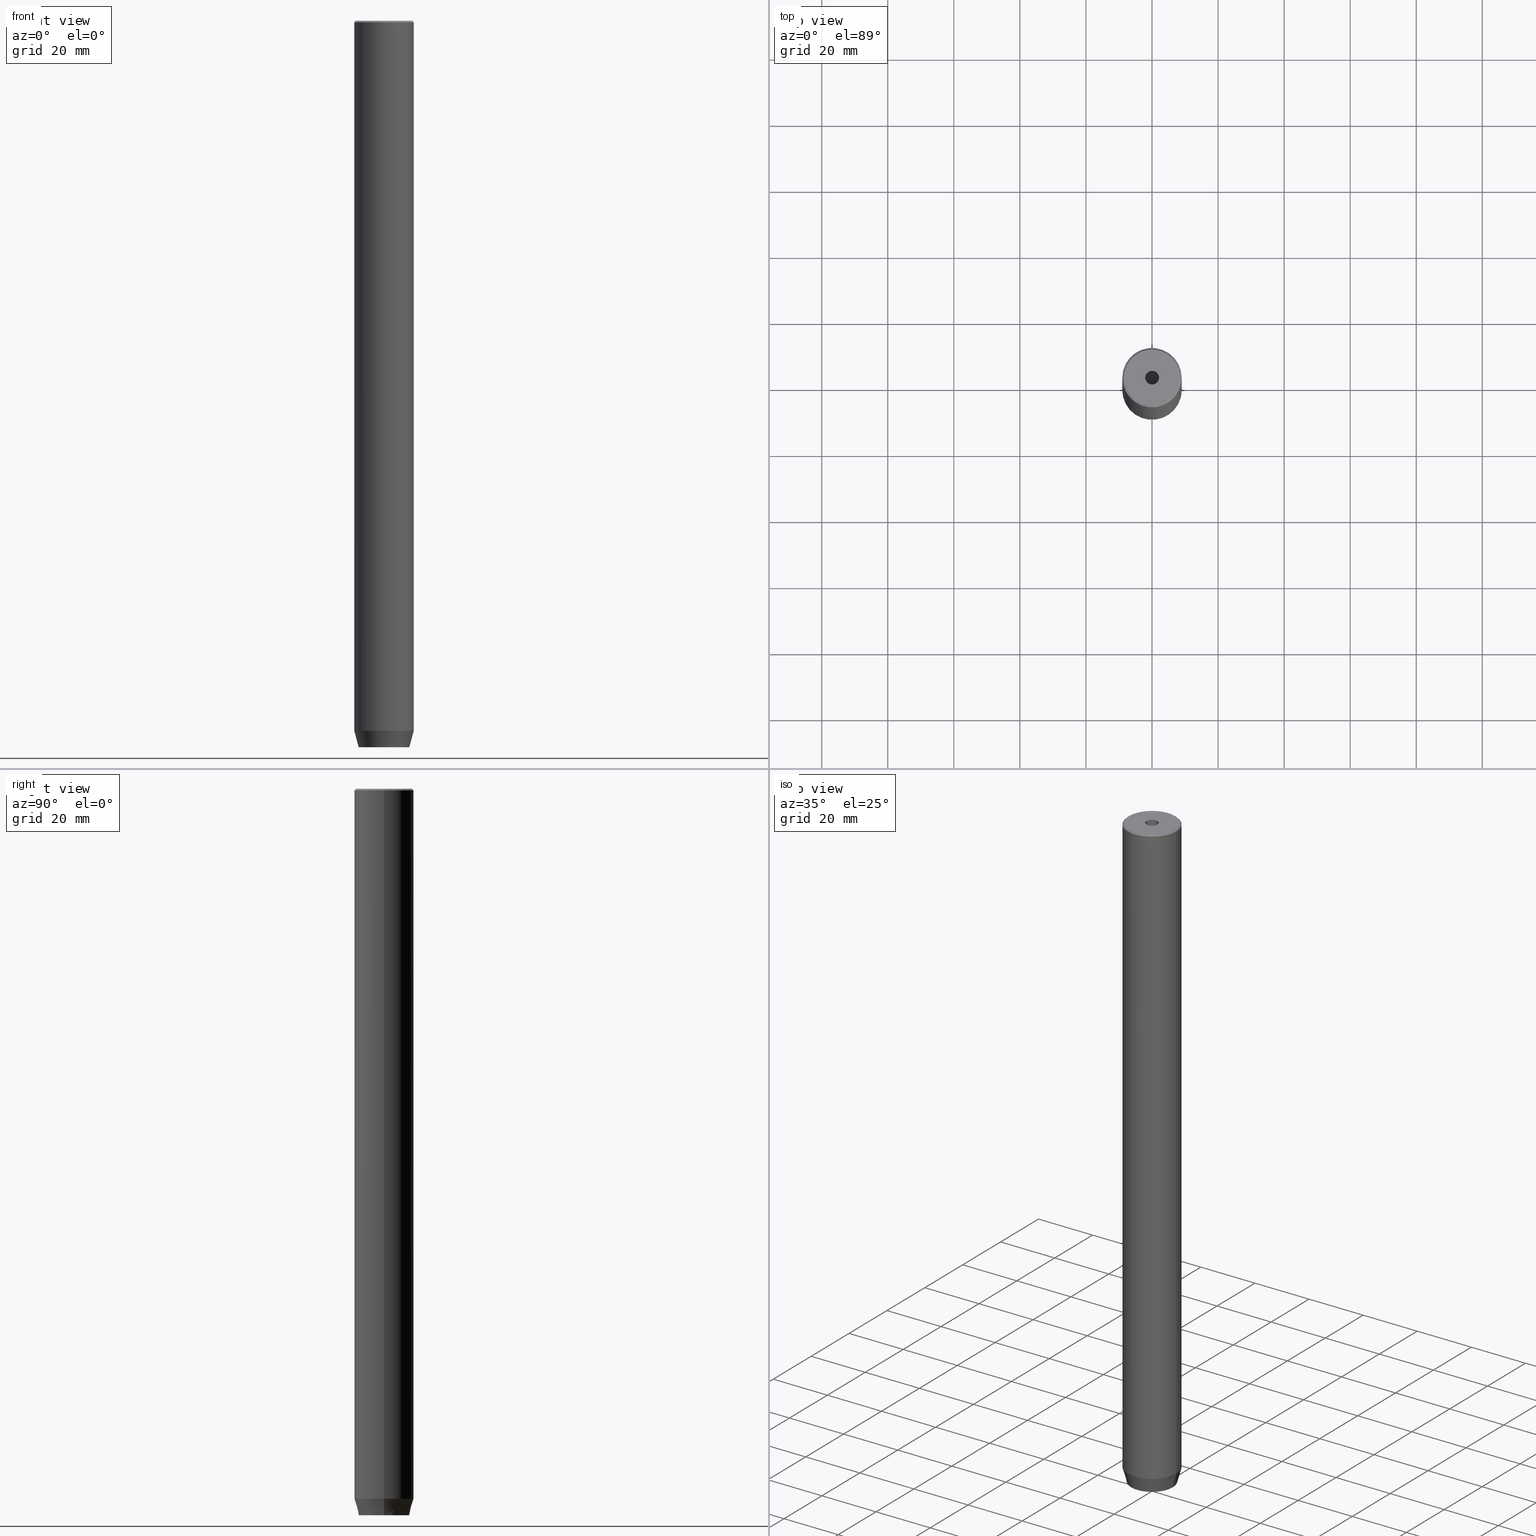
[diagram: canonical four-view strip — front | top / right | iso, engineering-drawing reading convention]
A machine part, canonical four-view strip (front | top / right | iso — engineering-drawing reading convention). The complete STEP part file that produces these views, byte-faithful:
ISO-10303-21;
HEADER;
FILE_DESCRIPTION (( 'STEP AP203' ),
    '1' );
FILE_NAME ('5825.STEP',
    '2024-01-02T19:06:49',
    ( '' ),
    ( '' ),
    'SwSTEP 2.0',
    'SolidWorks 2019',
    '' );
FILE_SCHEMA (( 'CONFIG_CONTROL_DESIGN' ));
ENDSEC;

DATA;
#1 = EDGE_LOOP ( 'NONE', ( #4, #383, #238, #505 ) ) ;
#2 = CARTESIAN_POINT ( 'NONE',  ( 3.000000000000000000, 0.000000000000000000, -217.2000000000000171 ) ) ;
#3 = ORIENTED_EDGE ( 'NONE', *, *, #77, .F. ) ;
#4 = ORIENTED_EDGE ( 'NONE', *, *, #68, .T. ) ;
#5 = VECTOR ( 'NONE', #581, 1000.000000000000000 ) ;
#6 = VECTOR ( 'NONE', #288, 1000.000000000000000 ) ;
#7 = PERSON_AND_ORGANIZATION ( #260, #237 ) ;
#8 = ORIENTED_EDGE ( 'NONE', *, *, #438, .F. ) ;
#9 = ORIENTED_EDGE ( 'NONE', *, *, #449, .F. ) ;
#10 = CARTESIAN_POINT ( 'NONE',  ( -2.168404344971008868E-16, -3.464101615137754830, -217.2000000000000171 ) ) ;
#11 = DIRECTION ( 'NONE',  ( 0.8660254037844385966, -0.5000000000000001110, 0.000000000000000000 ) ) ;
#12 = PLANE ( 'NONE',  #281 ) ;
#13 = APPLICATION_PROTOCOL_DEFINITION ( 'international standard', 'config_control_design', 1994, #381 ) ;
#14 = DIRECTION ( 'NONE',  ( 0.7071067811865647812, 8.659560562355143632E-17, -0.7071067811865302533 ) ) ;
#15 = EDGE_CURVE ( 'NONE', #543, #250, #76, .T. ) ;
#16 = DATE_AND_TIME ( #450, #371 ) ;
#17 = VERTEX_POINT ( 'NONE', #93 ) ;
#18 = AXIS2_PLACEMENT_3D ( 'NONE', #39, #533, #385 ) ;
#19 = CALENDAR_DATE ( 2024, 2, 1 ) ;
#20 = VERTEX_POINT ( 'NONE', #487 ) ;
#21 = EDGE_CURVE ( 'NONE', #423, #154, #539, .T. ) ;
#22 = FACE_OUTER_BOUND ( 'NONE', #119, .T. ) ;
#23 = CARTESIAN_POINT ( 'NONE',  ( -1.500000000000000666, -2.598076211353316456, -217.2000000000000171 ) ) ;
#24 = AXIS2_PLACEMENT_3D ( 'NONE', #251, #424, #380 ) ;
#25 = DIRECTION ( 'NONE',  ( -0.8660254037844385966, -0.5000000000000001110, 0.000000000000000000 ) ) ;
#26 = PLANE ( 'NONE',  #263 ) ;
#27 = EDGE_LOOP ( 'NONE', ( #470, #130, #3, #160, #63, #410 ) ) ;
#28 = LINE ( 'NONE', #511, #399 ) ;
#29 = FACE_BOUND ( 'NONE', #27, .T. ) ;
#30 = DIRECTION ( 'NONE',  ( -2.503857664561932376E-16, 1.000000000000000000, 0.000000000000000000 ) ) ;
#31 = ORIENTED_EDGE ( 'NONE', *, *, #583, .F. ) ;
#32 = EDGE_CURVE ( 'NONE', #49, #452, #492, .T. ) ;
#33 = AXIS2_PLACEMENT_3D ( 'NONE', #96, #266, #584 ) ;
#34 = CC_DESIGN_APPROVAL ( #282, ( #74 ) ) ;
#35 = VECTOR ( 'NONE', #85, 999.9999999999998863 ) ;
#36 = PRODUCT_RELATED_PRODUCT_CATEGORY ( 'detail', '', ( #538 ) ) ;
#37 = EDGE_CURVE ( 'NONE', #367, #423, #228, .T. ) ;
#38 = CARTESIAN_POINT ( 'NONE',  ( -9.000000000000000000, 1.102182119232617714E-15, -214.9999999999999716 ) ) ;
#39 = CARTESIAN_POINT ( 'NONE',  ( 0.000000000000000000, 0.000000000000000000, -214.9999999999999716 ) ) ;
#40 = DIRECTION ( 'NONE',  ( -0.000000000000000000, -0.000000000000000000, 1.000000000000000000 ) ) ;
#41 = VECTOR ( 'NONE', #265, 1000.000000000000000 ) ;
#42 = DIRECTION ( 'NONE',  ( -0.000000000000000000, -0.000000000000000000, 1.000000000000000000 ) ) ;
#43 = ORIENTED_EDGE ( 'NONE', *, *, #428, .F. ) ;
#44 = CARTESIAN_POINT ( 'NONE',  ( 0.000000000000000000, 0.000000000000000000, -220.0000000000000000 ) ) ;
#45 = AXIS2_PLACEMENT_3D ( 'NONE', #389, #42, #217 ) ;
#46 = ORIENTED_EDGE ( 'NONE', *, *, #438, .T. ) ;
#47 = CARTESIAN_POINT ( 'NONE',  ( 0.000000000000000000, 0.000000000000000000, 0.000000000000000000 ) ) ;
#48 = CARTESIAN_POINT ( 'NONE',  ( -1.499999999999999556, 2.598076211353316012, -217.2000000000000171 ) ) ;
#49 = VERTEX_POINT ( 'NONE', #182 ) ;
#50 = EDGE_LOOP ( 'NONE', ( #255, #46, #356, #206 ) ) ;
#51 = CYLINDRICAL_SURFACE ( 'NONE', #432, 2.099999999999997424 ) ;
#52 = CARTESIAN_POINT ( 'NONE',  ( 0.000000000000000000, 0.000000000000000000, 0.000000000000000000 ) ) ;
#53 = AXIS2_PLACEMENT_3D ( 'NONE', #201, #566, #463 ) ;
#54 = VERTEX_POINT ( 'NONE', #103 ) ;
#55 = ORIENTED_EDGE ( 'NONE', *, *, #77, .T. ) ;
#56 = CONICAL_SURFACE ( 'NONE', #53, 2.099999999999996092, 1.029744258676652091 ) ;
#57 = DIRECTION ( 'NONE',  ( -0.000000000000000000, -0.000000000000000000, 1.000000000000000000 ) ) ;
#58 = DATE_TIME_ROLE ( 'classification_date' ) ;
#59 = DIRECTION ( 'NONE',  ( 1.000000000000000000, 0.000000000000000000, 0.000000000000000000 ) ) ;
#60 = DIRECTION ( 'NONE',  ( 0.8660254037844385966, -0.5000000000000001110, 0.000000000000000000 ) ) ;
#61 = CARTESIAN_POINT ( 'NONE',  ( 3.000000000000000000, 0.000000000000000000, -220.0000000000000000 ) ) ;
#62 = DIRECTION ( 'NONE',  ( -0.000000000000000000, -0.000000000000000000, 1.000000000000000000 ) ) ;
#63 = ORIENTED_EDGE ( 'NONE', *, *, #169, .F. ) ;
#64 = EDGE_CURVE ( 'NONE', #106, #224, #497, .T. ) ;
#65 = VERTEX_POINT ( 'NONE', #546 ) ;
#66 = APPROVAL_ROLE ( '' ) ;
#67 = ORIENTED_EDGE ( 'NONE', *, *, #375, .T. ) ;
#68 = EDGE_CURVE ( 'NONE', #498, #49, #81, .T. ) ;
#69 = CARTESIAN_POINT ( 'NONE',  ( -1.084202172485504434E-16, 3.464101615137754830, -217.2000000000000171 ) ) ;
#70 = VECTOR ( 'NONE', #25, 1000.000000000000000 ) ;
#71 = PERSON_AND_ORGANIZATION ( #260, #237 ) ;
#72 = ORIENTED_EDGE ( 'NONE', *, *, #358, .T. ) ;
#73 = ORIENTED_EDGE ( 'NONE', *, *, #21, .F. ) ;
#74 = SECURITY_CLASSIFICATION ( '', '', #102 ) ;
#76 = CIRCLE ( 'NONE', #563, 7.660254037844374864 ) ;
#75 = CARTESIAN_POINT ( 'NONE',  ( -1.084202172485504434E-16, 3.464101615137754830, -217.2000000000000171 ) ) ;
#77 = EDGE_CURVE ( 'NONE', #335, #294, #28, .T. ) ;
#78 = CARTESIAN_POINT ( 'NONE',  ( -2.099999999999997424, 2.571758278209438506E-16, 0.000000000000000000 ) ) ;
#79 = PLANE ( 'NONE',  #24 ) ;
#80 = EDGE_CURVE ( 'NONE', #423, #224, #120, .T. ) ;
#81 = CIRCLE ( 'NONE', #377, 9.000000000000000000 ) ;
#82 = DIRECTION ( 'NONE',  ( -0.000000000000000000, -0.000000000000000000, 1.000000000000000000 ) ) ;
#83 = DIRECTION ( 'NONE',  ( 0.000000000000000000, 0.000000000000000000, -1.000000000000000000 ) ) ;
#84 = DIRECTION ( 'NONE',  ( -0.000000000000000000, -0.000000000000000000, -1.000000000000000000 ) ) ;
#85 = DIRECTION ( 'NONE',  ( 0.8660254037844387076, 0.4999999999999999445, 0.000000000000000000 ) ) ;
#86 = EDGE_CURVE ( 'NONE', #49, #498, #127, .T. ) ;
#87 = DIRECTION ( 'NONE',  ( -1.000000000000000000, 0.000000000000000000, -0.000000000000000000 ) ) ;
#88 = ADVANCED_FACE ( 'NONE', ( #231 ), #407, .T. ) ;
#89 = PLANE ( 'NONE',  #33 ) ;
#90 =( GEOMETRIC_REPRESENTATION_CONTEXT ( 3 ) GLOBAL_UNCERTAINTY_ASSIGNED_CONTEXT ( ( #327 ) ) GLOBAL_UNIT_ASSIGNED_CONTEXT ( ( #129, #299, #175 ) ) REPRESENTATION_CONTEXT ( 'NONE', 'WORKASPACE' ) );
#91 = EDGE_LOOP ( 'NONE', ( #219, #9, #31, #403 ) ) ;
#92 = PRODUCT_DEFINITION_FORMATION_WITH_SPECIFIED_SOURCE ( 'LIBOVOLN�', '', #538, .NOT_KNOWN. ) ;
#93 = CARTESIAN_POINT ( 'NONE',  ( 3.000000000000000000, -1.732050807568876527, -220.0000000000000000 ) ) ;
#94 = CARTESIAN_POINT ( 'NONE',  ( -3.000000000000000000, -1.732050807568877859, -217.2000000000000171 ) ) ;
#95 = VECTOR ( 'NONE', #489, 1000.000000000000000 ) ;
#96 = CARTESIAN_POINT ( 'NONE',  ( -1.499999999999999556, 2.598076211353316012, -217.2000000000000171 ) ) ;
#97 = DIRECTION ( 'NONE',  ( 0.000000000000000000, 0.000000000000000000, -1.000000000000000000 ) ) ;
#98 = ORIENTED_EDGE ( 'NONE', *, *, #264, .F. ) ;
#99 = CARTESIAN_POINT ( 'NONE',  ( -7.660254037844374864, 1.020146339021393877E-15, -220.0000000000000000 ) ) ;
#100 = CARTESIAN_POINT ( 'NONE',  ( 3.000000000000000000, -1.732050807568876527, -217.2000000000000171 ) ) ;
#101 = EDGE_CURVE ( 'NONE', #501, #504, #515, .T. ) ;
#102 = SECURITY_CLASSIFICATION_LEVEL ( 'unclassified' ) ;
#103 = CARTESIAN_POINT ( 'NONE',  ( -3.000000000000000888, 1.732050807568876527, -217.2000000000000171 ) ) ;
#104 = DIRECTION ( 'NONE',  ( 0.8660254037844385966, 0.5000000000000001110, 0.000000000000000000 ) ) ;
#105 = CARTESIAN_POINT ( 'NONE',  ( 0.000000000000000000, 0.000000000000000000, 0.000000000000000000 ) ) ;
#106 = VERTEX_POINT ( 'NONE', #198 ) ;
#107 = EDGE_CURVE ( 'NONE', #294, #587, #418, .T. ) ;
#108 = ORIENTED_EDGE ( 'NONE', *, *, #264, .T. ) ;
#109 = ORIENTED_EDGE ( 'NONE', *, *, #37, .T. ) ;
#110 = CALENDAR_DATE ( 2024, 2, 1 ) ;
#111 = CARTESIAN_POINT ( 'NONE',  ( 0.000000000000000000, 0.000000000000000000, -1.990051048614449116E-16 ) ) ;
#112 = AXIS2_PLACEMENT_3D ( 'NONE', #433, #214, #170 ) ;
#113 = CONICAL_SURFACE ( 'NONE', #401, 8.499999999999980460, 0.7853981633974725929 ) ;
#114 = PERSON_AND_ORGANIZATION ( #260, #237 ) ;
#115 = CARTESIAN_POINT ( 'NONE',  ( 0.000000000000000000, 0.000000000000000000, -217.2000000000000171 ) ) ;
#116 = EDGE_CURVE ( 'NONE', #154, #501, #205, .T. ) ;
#117 = LINE ( 'NONE', #332, #149 ) ;
#118 = CARTESIAN_POINT ( 'NONE',  ( -2.168404344971008868E-16, -3.464101615137754830, -220.0000000000000000 ) ) ;
#119 = EDGE_LOOP ( 'NONE', ( #472, #572, #73, #373 ) ) ;
#120 = LINE ( 'NONE', #419, #372 ) ;
#121 = AXIS2_PLACEMENT_3D ( 'NONE', #256, #388, #162 ) ;
#122 = AXIS2_PLACEMENT_3D ( 'NONE', #115, #552, #451 ) ;
#123 = EDGE_CURVE ( 'NONE', #367, #106, #207, .T. ) ;
#124 = EDGE_CURVE ( 'NONE', #20, #452, #117, .T. ) ;
#125 = CARTESIAN_POINT ( 'NONE',  ( 3.000000000000000000, 1.732050807568876527, -217.2000000000000171 ) ) ;
#126 = FACE_OUTER_BOUND ( 'NONE', #304, .T. ) ;
#127 = CIRCLE ( 'NONE', #455, 9.000000000000000000 ) ;
#128 = VECTOR ( 'NONE', #142, 999.9999999999998863 ) ;
#129 =( LENGTH_UNIT ( ) NAMED_UNIT ( * ) SI_UNIT ( .MILLI., .METRE. ) );
#130 = ORIENTED_EDGE ( 'NONE', *, *, #107, .F. ) ;
#131 = DIRECTION ( 'NONE',  ( 1.000000000000000000, 0.000000000000000000, 0.000000000000000000 ) ) ;
#132 = CARTESIAN_POINT ( 'NONE',  ( 0.000000000000000000, 0.000000000000000000, 0.000000000000000000 ) ) ;
#133 = FACE_OUTER_BOUND ( 'NONE', #527, .T. ) ;
#134 = CARTESIAN_POINT ( 'NONE',  ( -9.000000000000000000, 1.102182119232617714E-15, -0.4999999999999952260 ) ) ;
#135 = CIRCLE ( 'NONE', #471, 2.099999999999996092 ) ;
#136 = CLOSED_SHELL ( 'NONE', ( #364, #242, #326, #239, #247, #391, #196, #88, #197, #241, #519, #187, #576, #141, #244, #408, #291, #420, #188 ) ) ;
#137 = ORIENTED_EDGE ( 'NONE', *, *, #430, .F. ) ;
#138 = AXIS2_PLACEMENT_3D ( 'NONE', #532, #97, #477 ) ;
#139 = CARTESIAN_POINT ( 'NONE',  ( 0.000000000000000000, 0.000000000000000000, 0.000000000000000000 ) ) ;
#140 = CC_DESIGN_PERSON_AND_ORGANIZATION_ASSIGNMENT ( #7, #509, ( #336 ) ) ;
#141 = ADVANCED_FACE ( 'NONE', ( #159 ), #518, .F. ) ;
#142 = DIRECTION ( 'NONE',  ( 0.8660254037844387076, 0.4999999999999999445, 0.000000000000000000 ) ) ;
#143 = DIRECTION ( 'NONE',  ( -0.000000000000000000, 0.000000000000000000, -1.000000000000000000 ) ) ;
#144 = DIRECTION ( 'NONE',  ( 2.503857664561933362E-16, -1.000000000000000000, 0.000000000000000000 ) ) ;
#145 = ORIENTED_EDGE ( 'NONE', *, *, #86, .T. ) ;
#146 = SHAPE_DEFINITION_REPRESENTATION ( #337, #503 ) ;
#147 = CC_DESIGN_APPROVAL ( #411, ( #92 ) ) ;
#148 = ORIENTED_EDGE ( 'NONE', *, *, #116, .F. ) ;
#149 = VECTOR ( 'NONE', #376, 1000.000000000000114 ) ;
#150 = APPROVAL_DATE_TIME ( #548, #282 ) ;
#151 = APPROVAL_ROLE ( '' ) ;
#152 = CARTESIAN_POINT ( 'NONE',  ( 2.099999999999996092, 0.000000000000000000, -20.00000000000000000 ) ) ;
#153 = PLANE ( 'NONE',  #293 ) ;
#154 = VERTEX_POINT ( 'NONE', #173 ) ;
#155 = DIRECTION ( 'NONE',  ( 1.000000000000000000, 0.000000000000000000, -0.000000000000000000 ) ) ;
#156 = ORIENTED_EDGE ( 'NONE', *, *, #123, .T. ) ;
#157 = AXIS2_PLACEMENT_3D ( 'NONE', #105, #283, #360 ) ;
#159 = FACE_OUTER_BOUND ( 'NONE', #520, .T. ) ;
#158 = AXIS2_PLACEMENT_3D ( 'NONE', #111, #246, #569 ) ;
#160 = ORIENTED_EDGE ( 'NONE', *, *, #568, .F. ) ;
#161 = ORIENTED_EDGE ( 'NONE', *, *, #551, .T. ) ;
#162 = DIRECTION ( 'NONE',  ( 1.000000000000000000, 0.000000000000000000, 0.000000000000000000 ) ) ;
#163 = DIRECTION ( 'NONE',  ( -0.000000000000000000, -0.000000000000000000, 1.000000000000000000 ) ) ;
#164 = DIRECTION ( 'NONE',  ( 0.8571673007021111124, 0.000000000000000000, 0.5150380749100562650 ) ) ;
#165 = DIRECTION ( 'NONE',  ( 1.000000000000000000, 0.000000000000000000, 0.000000000000000000 ) ) ;
#166 = VECTOR ( 'NONE', #374, 1000.000000000000114 ) ;
#167 = FACE_OUTER_BOUND ( 'NONE', #559, .T. ) ;
#168 = EDGE_LOOP ( 'NONE', ( #390, #307, #269 ) ) ;
#169 = EDGE_CURVE ( 'NONE', #224, #17, #434, .T. ) ;
#170 = DIRECTION ( 'NONE',  ( 0.8660254037844385966, -0.5000000000000001110, 0.000000000000000000 ) ) ;
#171 = CARTESIAN_POINT ( 'NONE',  ( -3.000000000000000888, 1.732050807568876527, -217.2000000000000171 ) ) ;
#172 = ORIENTED_EDGE ( 'NONE', *, *, #80, .F. ) ;
#173 = CARTESIAN_POINT ( 'NONE',  ( 3.000000000000000000, -1.732050807568876527, -217.2000000000000171 ) ) ;
#174 = VERTEX_POINT ( 'NONE', #582 ) ;
#175 =( NAMED_UNIT ( * ) SI_UNIT ( $, .STERADIAN. ) SOLID_ANGLE_UNIT ( ) );
#176 = ORIENTED_EDGE ( 'NONE', *, *, #15, .F. ) ;
#177 = DIRECTION ( 'NONE',  ( 0.000000000000000000, -1.000000000000000000, 0.000000000000000000 ) ) ;
#178 = ORIENTED_EDGE ( 'NONE', *, *, #32, .F. ) ;
#179 = VECTOR ( 'NONE', #195, 1000.000000000000000 ) ;
#180 = EDGE_CURVE ( 'NONE', #480, #351, #316, .T. ) ;
#181 = DATE_AND_TIME ( #19, #398 ) ;
#182 = CARTESIAN_POINT ( 'NONE',  ( -9.000000000000000000, 1.102182119232617714E-15, -214.9999999999999716 ) ) ;
#183 = DIRECTION ( 'NONE',  ( -1.000000000000000000, -2.503857664561933362E-16, 0.000000000000000000 ) ) ;
#184 = APPROVAL_STATUS ( 'not_yet_approved' ) ;
#185 = ORIENTED_EDGE ( 'NONE', *, *, #341, .F. ) ;
#186 = ORIENTED_EDGE ( 'NONE', *, *, #123, .F. ) ;
#187 = ADVANCED_FACE ( 'NONE', ( #531 ), #12, .F. ) ;
#188 = ADVANCED_FACE ( 'NONE', ( #133 ), #276, .F. ) ;
#189 = APPLICATION_PROTOCOL_DEFINITION ( 'international standard', 'config_control_design', 1994, #513 ) ;
#190 = LINE ( 'NONE', #94, #95 ) ;
#191 = ORIENTED_EDGE ( 'NONE', *, *, #449, .T. ) ;
#192 = AXIS2_PLACEMENT_3D ( 'NONE', #499, #62, #233 ) ;
#193 = PERSON_AND_ORGANIZATION ( #260, #237 ) ;
#194 = VERTEX_POINT ( 'NONE', #445 ) ;
#195 = DIRECTION ( 'NONE',  ( -0.8571673007021111124, 1.049727191138617217E-16, 0.5150380749100562650 ) ) ;
#196 = ADVANCED_FACE ( 'NONE', ( #232, #447 ), #26, .T. ) ;
#197 = ADVANCED_FACE ( 'NONE', ( #530 ), #510, .T. ) ;
#198 = CARTESIAN_POINT ( 'NONE',  ( -2.168404344971008868E-16, 3.464101615137753942, -220.0000000000000000 ) ) ;
#199 = DIRECTION ( 'NONE',  ( -1.000000000000000000, 0.000000000000000000, 0.000000000000000000 ) ) ;
#200 = CARTESIAN_POINT ( 'NONE',  ( 0.000000000000000000, 0.000000000000000000, 0.000000000000000000 ) ) ;
#201 = CARTESIAN_POINT ( 'NONE',  ( 0.000000000000000000, 0.000000000000000000, -20.00000000000000000 ) ) ;
#202 = EDGE_LOOP ( 'NONE', ( #320, #72, #437, #457 ) ) ;
#203 = EDGE_CURVE ( 'NONE', #54, #367, #526, .T. ) ;
#204 = CONICAL_SURFACE ( 'NONE', #500, 8.499999999999980460, 0.7853981633974725929 ) ;
#205 = LINE ( 'NONE', #330, #70 ) ;
#206 = ORIENTED_EDGE ( 'NONE', *, *, #86, .F. ) ;
#207 = LINE ( 'NONE', #75, #348 ) ;
#208 = DIRECTION ( 'NONE',  ( -0.000000000000000000, -0.000000000000000000, -1.000000000000000000 ) ) ;
#209 = CARTESIAN_POINT ( 'NONE',  ( 9.000000000000000000, 0.000000000000000000, -0.4999999999999952260 ) ) ;
#210 = FACE_OUTER_BOUND ( 'NONE', #202, .T. ) ;
#211 = LOCAL_TIME ( 20, 6, 49.00000000000000000, #443 ) ;
#212 = AXIS2_PLACEMENT_3D ( 'NONE', #139, #163, #491 ) ;
#213 = ORIENTED_EDGE ( 'NONE', *, *, #37, .F. ) ;
#214 = DIRECTION ( 'NONE',  ( -0.5000000000000001110, -0.8660254037844385966, 0.000000000000000000 ) ) ;
#215 = EDGE_CURVE ( 'NONE', #512, #435, #524, .T. ) ;
#216 = LINE ( 'NONE', #38, #346 ) ;
#217 = DIRECTION ( 'NONE',  ( 1.000000000000000000, 0.000000000000000000, 0.000000000000000000 ) ) ;
#218 = CIRCLE ( 'NONE', #138, 9.000000000000000000 ) ;
#219 = ORIENTED_EDGE ( 'NONE', *, *, #107, .T. ) ;
#220 = DIRECTION ( 'NONE',  ( -0.000000000000000000, -0.000000000000000000, 1.000000000000000000 ) ) ;
#221 = ORIENTED_EDGE ( 'NONE', *, *, #101, .F. ) ;
#222 = FACE_OUTER_BOUND ( 'NONE', #301, .T. ) ;
#223 = FACE_OUTER_BOUND ( 'NONE', #1, .T. ) ;
#224 = VERTEX_POINT ( 'NONE', #478 ) ;
#225 = DIRECTION ( 'NONE',  ( 1.000000000000000000, 0.000000000000000000, 0.000000000000000000 ) ) ;
#226 = APPROVAL_STATUS ( 'not_yet_approved' ) ;
#227 = CIRCLE ( 'NONE', #370, 9.000000000000000000 ) ;
#228 = LINE ( 'NONE', #404, #570 ) ;
#229 = VECTOR ( 'NONE', #564, 1000.000000000000000 ) ;
#230 = CALENDAR_DATE ( 2024, 2, 1 ) ;
#231 = FACE_OUTER_BOUND ( 'NONE', #561, .T. ) ;
#232 = FACE_BOUND ( 'NONE', #395, .T. ) ;
#233 = DIRECTION ( 'NONE',  ( 1.000000000000000000, 0.000000000000000000, 0.000000000000000000 ) ) ;
#234 = MECHANICAL_CONTEXT ( 'NONE', #381, 'mechanical' ) ;
#235 = APPROVAL ( #226, 'NEUR�EN�' ) ;
#236 = PERSON_AND_ORGANIZATION ( #260, #237 ) ;
#237 = ORGANIZATION ( 'NEUR�EN�', 'NEUR�EN�', '' ) ;
#238 = ORIENTED_EDGE ( 'NONE', *, *, #585, .T. ) ;
#239 = ADVANCED_FACE ( 'NONE', ( #257 ), #444, .T. ) ;
#240 = FACE_OUTER_BOUND ( 'NONE', #553, .T. ) ;
#241 = ADVANCED_FACE ( 'NONE', ( #580 ), #113, .T. ) ;
#242 = ADVANCED_FACE ( 'NONE', ( #243 ), #56, .F. ) ;
#243 = FACE_OUTER_BOUND ( 'NONE', #535, .T. ) ;
#244 = ADVANCED_FACE ( 'NONE', ( #22 ), #153, .F. ) ;
#245 = VECTOR ( 'NONE', #84, 1000.000000000000000 ) ;
#246 = DIRECTION ( 'NONE',  ( -0.000000000000000000, -0.000000000000000000, 1.000000000000000000 ) ) ;
#247 = ADVANCED_FACE ( 'NONE', ( #223 ), #577, .T. ) ;
#248 = LINE ( 'NONE', #292, #166 ) ;
#249 = ORIENTED_EDGE ( 'NONE', *, *, #468, .F. ) ;
#250 = VERTEX_POINT ( 'NONE', #99 ) ;
#251 = CARTESIAN_POINT ( 'NONE',  ( 1.500000000000000222, 2.598076211353315568, -217.2000000000000171 ) ) ;
#252 = EDGE_CURVE ( 'NONE', #501, #335, #268, .T. ) ;
#253 = CC_DESIGN_PERSON_AND_ORGANIZATION_ASSIGNMENT ( #71, #409, ( #92 ) ) ;
#254 = DIRECTION ( 'NONE',  ( -0.000000000000000000, -0.000000000000000000, 1.000000000000000000 ) ) ;
#255 = ORIENTED_EDGE ( 'NONE', *, *, #534, .F. ) ;
#256 = CARTESIAN_POINT ( 'NONE',  ( 0.000000000000000000, 0.000000000000000000, -1.990051048614449116E-16 ) ) ;
#257 = FACE_OUTER_BOUND ( 'NONE', #560, .T. ) ;
#258 = FACE_OUTER_BOUND ( 'NONE', #396, .T. ) ;
#259 = EDGE_CURVE ( 'NONE', #194, #512, #474, .T. ) ;
#260 = PERSON ( 'NEUR�EN�', 'NEUR�EN�', 'NEUR�EN�', ('NEUR�EN�'), ('NEUR�EN�'), ('NEUR�EN�') ) ;
#261 = VECTOR ( 'NONE', #578, 1000.000000000000000 ) ;
#262 = CARTESIAN_POINT ( 'NONE',  ( 0.000000000000000000, 0.000000000000000000, -0.4999999999999952260 ) ) ;
#263 = AXIS2_PLACEMENT_3D ( 'NONE', #490, #586, #575 ) ;
#264 = EDGE_CURVE ( 'NONE', #20, #480, #275, .T. ) ;
#265 = DIRECTION ( 'NONE',  ( -0.000000000000000000, -0.000000000000000000, 1.000000000000000000 ) ) ;
#266 = DIRECTION ( 'NONE',  ( -0.4999999999999999445, 0.8660254037844387076, 0.000000000000000000 ) ) ;
#267 = CARTESIAN_POINT ( 'NONE',  ( 2.099999999999997424, 0.000000000000000000, 0.000000000000000000 ) ) ;
#268 = LINE ( 'NONE', #10, #378 ) ;
#269 = ORIENTED_EDGE ( 'NONE', *, *, #514, .T. ) ;
#270 = LINE ( 'NONE', #541, #128 ) ;
#271 = PERSON_AND_ORGANIZATION_ROLE ( 'creator' ) ;
#272 = DIRECTION ( 'NONE',  ( -0.000000000000000000, -0.000000000000000000, 1.000000000000000000 ) ) ;
#273 = ORIENTED_EDGE ( 'NONE', *, *, #379, .T. ) ;
#274 = CARTESIAN_POINT ( 'NONE',  ( 1.500000000000000222, 2.598076211353315568, -220.0000000000000000 ) ) ;
#275 = CIRCLE ( 'NONE', #362, 8.499999999999980460 ) ;
#276 = CYLINDRICAL_SURFACE ( 'NONE', #525, 2.099999999999997424 ) ;
#277 = COORDINATED_UNIVERSAL_TIME_OFFSET ( 1, 0, .AHEAD. ) ;
#278 = CC_DESIGN_DATE_AND_TIME_ASSIGNMENT ( #507, #400, ( #336 ) ) ;
#279 = CARTESIAN_POINT ( 'NONE',  ( 0.000000000000000000, 0.000000000000000000, 0.000000000000000000 ) ) ;
#280 = APPROVAL_DATE_TIME ( #16, #235 ) ;
#281 = AXIS2_PLACEMENT_3D ( 'NONE', #303, #183, #144 ) ;
#282 = APPROVAL ( #184, 'NEUR�EN�' ) ;
#283 = DIRECTION ( 'NONE',  ( 0.000000000000000000, 0.000000000000000000, 1.000000000000000000 ) ) ;
#284 = DIRECTION ( 'NONE',  ( 1.000000000000000000, 0.000000000000000000, 0.000000000000000000 ) ) ;
#285 = DIRECTION ( 'NONE',  ( 1.000000000000000000, 0.000000000000000000, 0.000000000000000000 ) ) ;
#286 = CARTESIAN_POINT ( 'NONE',  ( 3.000000000000000000, 0.000000000000000000, -217.2000000000000171 ) ) ;
#287 = AXIS2_PLACEMENT_3D ( 'NONE', #350, #441, #104 ) ;
#288 = DIRECTION ( 'NONE',  ( -0.8660254037844385966, 0.5000000000000001110, 0.000000000000000000 ) ) ;
#289 = ORIENTED_EDGE ( 'NONE', *, *, #514, .F. ) ;
#290 = PLANE ( 'NONE',  #334 ) ;
#291 = ADVANCED_FACE ( 'NONE', ( #240 ), #361, .T. ) ;
#292 = CARTESIAN_POINT ( 'NONE',  ( 9.000000000000000000, 0.000000000000000000, -214.9999999999999716 ) ) ;
#293 = AXIS2_PLACEMENT_3D ( 'NONE', #286, #155, #143 ) ;
#294 = VERTEX_POINT ( 'NONE', #413 ) ;
#295 = EDGE_CURVE ( 'NONE', #174, #194, #556, .T. ) ;
#296 = VECTOR ( 'NONE', #14, 1000.000000000000114 ) ;
#297 = CARTESIAN_POINT ( 'NONE',  ( -2.168404344971008868E-16, -3.464101615137754830, -217.2000000000000171 ) ) ;
#298 = CARTESIAN_POINT ( 'NONE',  ( 0.000000000000000000, 0.000000000000000000, 0.000000000000000000 ) ) ;
#299 =( NAMED_UNIT ( * ) PLANE_ANGLE_UNIT ( ) SI_UNIT ( $, .RADIAN. ) );
#300 = DIRECTION ( 'NONE',  ( -0.000000000000000000, -0.000000000000000000, 1.000000000000000000 ) ) ;
#301 = EDGE_LOOP ( 'NONE', ( #273, #186, #467, #191 ) ) ;
#302 = ORIENTED_EDGE ( 'NONE', *, *, #252, .T. ) ;
#303 = CARTESIAN_POINT ( 'NONE',  ( -3.000000000000000444, -7.511572993685800087E-16, -217.2000000000000171 ) ) ;
#304 = EDGE_LOOP ( 'NONE', ( #55, #137, #221, #302 ) ) ;
#305 = CARTESIAN_POINT ( 'NONE',  ( 1.500000000000000222, -2.598076211353315568, -220.0000000000000000 ) ) ;
#306 = EDGE_CURVE ( 'NONE', #174, #512, #558, .T. ) ;
#307 = ORIENTED_EDGE ( 'NONE', *, *, #306, .T. ) ;
#308 = APPROVAL_PERSON_ORGANIZATION ( #236, #235, #363 ) ;
#309 = APPROVAL_PERSON_ORGANIZATION ( #319, #411, #66 ) ;
#310 = VECTOR ( 'NONE', #60, 1000.000000000000000 ) ;
#311 = CARTESIAN_POINT ( 'NONE',  ( -3.000000000000000000, -1.732050807568877859, -217.2000000000000171 ) ) ;
#312 = VECTOR ( 'NONE', #300, 1000.000000000000000 ) ;
#313 = ORIENTED_EDGE ( 'NONE', *, *, #568, .T. ) ;
#314 = DIRECTION ( 'NONE',  ( -0.000000000000000000, -0.000000000000000000, 1.000000000000000000 ) ) ;
#315 = ORIENTED_EDGE ( 'NONE', *, *, #180, .F. ) ;
#316 = LINE ( 'NONE', #393, #296 ) ;
#317 = DIRECTION ( 'NONE',  ( 1.000000000000000000, 0.000000000000000000, 0.000000000000000000 ) ) ;
#318 = ORIENTED_EDGE ( 'NONE', *, *, #215, .T. ) ;
#319 = PERSON_AND_ORGANIZATION ( #260, #237 ) ;
#320 = ORIENTED_EDGE ( 'NONE', *, *, #259, .F. ) ;
#321 = VECTOR ( 'NONE', #30, 1000.000000000000000 ) ;
#322 = ORIENTED_EDGE ( 'NONE', *, *, #124, .F. ) ;
#323 = PERSON_AND_ORGANIZATION ( #260, #237 ) ;
#324 = ORIENTED_EDGE ( 'NONE', *, *, #529, .T. ) ;
#325 = DIRECTION ( 'NONE',  ( 1.000000000000000000, 0.000000000000000000, 0.000000000000000000 ) ) ;
#326 = ADVANCED_FACE ( 'NONE', ( #522 ), #204, .T. ) ;
#327 = UNCERTAINTY_MEASURE_WITH_UNIT (LENGTH_MEASURE( 1.000000000000000082E-05 ), #129, 'distance_accuracy_value', 'NONE');
#328 = VECTOR ( 'NONE', #397, 1000.000000000000000 ) ;
#329 = CARTESIAN_POINT ( 'NONE',  ( -3.000000000000000444, -7.511572993685800087E-16, -220.0000000000000000 ) ) ;
#330 = CARTESIAN_POINT ( 'NONE',  ( 1.500000000000000222, -2.598076211353315568, -217.2000000000000171 ) ) ;
#331 = CC_DESIGN_PERSON_AND_ORGANIZATION_ASSIGNMENT ( #446, #366, ( #538 ) ) ;
#332 = CARTESIAN_POINT ( 'NONE',  ( -8.499999999999980460, 0.000000000000000000, 0.000000000000000000 ) ) ;
#333 = CC_DESIGN_APPROVAL ( #235, ( #336 ) ) ;
#334 = AXIS2_PLACEMENT_3D ( 'NONE', #521, #479, #87 ) ;
#335 = VERTEX_POINT ( 'NONE', #118 ) ;
#336 = PRODUCT_DEFINITION ( 'NEZN�M�', '', #92, #461 ) ;
#337 = PRODUCT_DEFINITION_SHAPE ( 'NONE', 'NONE',  #336 ) ;
#338 = CARTESIAN_POINT ( 'NONE',  ( 2.099999999999998757, 0.000000000000000000, -1.990051048614449116E-16 ) ) ;
#339 = AXIS2_PLACEMENT_3D ( 'NONE', #459, #448, #325 ) ;
#340 = CARTESIAN_POINT ( 'NONE',  ( -3.000000000000000888, 1.732050807568876527, -220.0000000000000000 ) ) ;
#341 = EDGE_CURVE ( 'NONE', #65, #435, #425, .T. ) ;
#342 = CARTESIAN_POINT ( 'NONE',  ( 9.000000000000000000, 0.000000000000000000, 0.000000000000000000 ) ) ;
#343 = CARTESIAN_POINT ( 'NONE',  ( 0.000000000000000000, 0.000000000000000000, -220.0000000000000000 ) ) ;
#344 = ORIENTED_EDGE ( 'NONE', *, *, #180, .T. ) ;
#345 = DIRECTION ( 'NONE',  ( 1.000000000000000000, 0.000000000000000000, 0.000000000000000000 ) ) ;
#346 = VECTOR ( 'NONE', #481, 1000.000000000000114 ) ;
#347 = PLANE ( 'NONE',  #112 ) ;
#348 = VECTOR ( 'NONE', #208, 1000.000000000000000 ) ;
#349 = CARTESIAN_POINT ( 'NONE',  ( -9.000000000000000000, 1.102182119232617714E-15, 0.000000000000000000 ) ) ;
#350 = CARTESIAN_POINT ( 'NONE',  ( 1.500000000000000222, -2.598076211353315568, -217.2000000000000171 ) ) ;
#351 = VERTEX_POINT ( 'NONE', #209 ) ;
#352 = PERSON_AND_ORGANIZATION_ROLE ( 'classification_officer' ) ;
#353 = ORIENTED_EDGE ( 'NONE', *, *, #551, .F. ) ;
#354 = ORIENTED_EDGE ( 'NONE', *, *, #252, .F. ) ;
#355 = COORDINATED_UNIVERSAL_TIME_OFFSET ( 1, 0, .AHEAD. ) ;
#356 = ORIENTED_EDGE ( 'NONE', *, *, #428, .T. ) ;
#357 = ORIENTED_EDGE ( 'NONE', *, *, #203, .T. ) ;
#358 = EDGE_CURVE ( 'NONE', #194, #65, #421, .T. ) ;
#359 = CIRCLE ( 'NONE', #121, 2.099999999999998757 ) ;
#360 = DIRECTION ( 'NONE',  ( 1.000000000000000000, 0.000000000000000000, 0.000000000000000000 ) ) ;
#361 = PLANE ( 'NONE',  #122 ) ;
#362 = AXIS2_PLACEMENT_3D ( 'NONE', #200, #565, #285 ) ;
#363 = APPROVAL_ROLE ( '' ) ;
#364 = ADVANCED_FACE ( 'NONE', ( #210 ), #51, .F. ) ;
#365 = ORIENTED_EDGE ( 'NONE', *, *, #64, .T. ) ;
#366 = PERSON_AND_ORGANIZATION_ROLE ( 'design_owner' ) ;
#367 = VERTEX_POINT ( 'NONE', #69 ) ;
#368 = EDGE_LOOP ( 'NONE', ( #108, #422 ) ) ;
#369 = ORIENTED_EDGE ( 'NONE', *, *, #358, .F. ) ;
#370 = AXIS2_PLACEMENT_3D ( 'NONE', #262, #436, #165 ) ;
#371 = LOCAL_TIME ( 20, 6, 49.00000000000000000, #277 ) ;
#372 = VECTOR ( 'NONE', #554, 1000.000000000000000 ) ;
#373 = ORIENTED_EDGE ( 'NONE', *, *, #80, .T. ) ;
#374 = DIRECTION ( 'NONE',  ( 0.2588190451025210725, 0.000000000000000000, 0.9659258262890680902 ) ) ;
#375 = EDGE_CURVE ( 'NONE', #154, #17, #493, .T. ) ;
#376 = DIRECTION ( 'NONE',  ( -0.7071067811865647812, 0.000000000000000000, -0.7071067811865302533 ) ) ;
#377 = AXIS2_PLACEMENT_3D ( 'NONE', #394, #550, #225 ) ;
#378 = VECTOR ( 'NONE', #440, 1000.000000000000000 ) ;
#379 = EDGE_CURVE ( 'NONE', #587, #106, #270, .T. ) ;
#380 = DIRECTION ( 'NONE',  ( -0.8660254037844385966, 0.5000000000000001110, 0.000000000000000000 ) ) ;
#381 = APPLICATION_CONTEXT ( 'configuration controlled 3d designs of mechanical parts and assemblies' ) ;
#382 = CARTESIAN_POINT ( 'NONE',  ( 0.000000000000000000, 0.000000000000000000, -20.00000000000000000 ) ) ;
#383 = ORIENTED_EDGE ( 'NONE', *, *, #32, .T. ) ;
#384 = LINE ( 'NONE', #429, #261 ) ;
#385 = DIRECTION ( 'NONE',  ( 1.000000000000000000, 0.000000000000000000, 0.000000000000000000 ) ) ;
#386 = VECTOR ( 'NONE', #177, 1000.000000000000000 ) ;
#387 = VECTOR ( 'NONE', #164, 1000.000000000000000 ) ;
#388 = DIRECTION ( 'NONE',  ( -0.000000000000000000, -0.000000000000000000, 1.000000000000000000 ) ) ;
#389 = CARTESIAN_POINT ( 'NONE',  ( 0.000000000000000000, 0.000000000000000000, -214.9999999999999716 ) ) ;
#390 = ORIENTED_EDGE ( 'NONE', *, *, #295, .F. ) ;
#391 = ADVANCED_FACE ( 'NONE', ( #29, #167 ), #290, .T. ) ;
#392 = DIRECTION ( 'NONE',  ( 1.000000000000000000, 0.000000000000000000, 0.000000000000000000 ) ) ;
#393 = CARTESIAN_POINT ( 'NONE',  ( 8.499999999999980460, 1.040949779275247773E-15, 0.000000000000000000 ) ) ;
#394 = CARTESIAN_POINT ( 'NONE',  ( 0.000000000000000000, 0.000000000000000000, -214.9999999999999716 ) ) ;
#395 = EDGE_LOOP ( 'NONE', ( #353, #185 ) ) ;
#396 = EDGE_LOOP ( 'NONE', ( #365, #172, #213, #156 ) ) ;
#397 = DIRECTION ( 'NONE',  ( -0.000000000000000000, -0.000000000000000000, -1.000000000000000000 ) ) ;
#398 = LOCAL_TIME ( 20, 6, 49.00000000000000000, #494 ) ;
#399 = VECTOR ( 'NONE', #517, 1000.000000000000000 ) ;
#400 = DATE_TIME_ROLE ( 'creation_date' ) ;
#401 = AXIS2_PLACEMENT_3D ( 'NONE', #132, #482, #567 ) ;
#402 = CC_DESIGN_DATE_AND_TIME_ASSIGNMENT ( #557, #58, ( #74 ) ) ;
#403 = ORIENTED_EDGE ( 'NONE', *, *, #430, .T. ) ;
#404 = CARTESIAN_POINT ( 'NONE',  ( 1.500000000000000222, 2.598076211353315568, -217.2000000000000171 ) ) ;
#405 = DIRECTION ( 'NONE',  ( 0.000000000000000000, -1.000000000000000000, 0.000000000000000000 ) ) ;
#406 = APPROVAL_DATE_TIME ( #181, #411 ) ;
#407 = CYLINDRICAL_SURFACE ( 'NONE', #571, 9.000000000000000000 ) ;
#408 = ADVANCED_FACE ( 'NONE', ( #258 ), #79, .F. ) ;
#409 = PERSON_AND_ORGANIZATION_ROLE ( 'design_supplier' ) ;
#410 = ORIENTED_EDGE ( 'NONE', *, *, #64, .F. ) ;
#411 = APPROVAL ( #542, 'NEUR�EN�' ) ;
#412 = LOCAL_TIME ( 20, 6, 49.00000000000000000, #355 ) ;
#413 = CARTESIAN_POINT ( 'NONE',  ( -3.000000000000000000, -1.732050807568877859, -220.0000000000000000 ) ) ;
#414 = CARTESIAN_POINT ( 'NONE',  ( -2.099999999999996092, 2.571758278209436534E-16, -20.00000000000000000 ) ) ;
#415 = DIRECTION ( 'NONE',  ( -0.000000000000000000, -0.000000000000000000, 1.000000000000000000 ) ) ;
#416 = ORIENTED_EDGE ( 'NONE', *, *, #295, .T. ) ;
#417 = CONICAL_SURFACE ( 'NONE', #192, 2.099999999999996092, 1.029744258676652091 ) ;
#418 = LINE ( 'NONE', #329, #321 ) ;
#419 = CARTESIAN_POINT ( 'NONE',  ( 3.000000000000000000, 1.732050807568876527, -217.2000000000000171 ) ) ;
#420 = ADVANCED_FACE ( 'NONE', ( #573 ), #417, .F. ) ;
#421 = LINE ( 'NONE', #78, #229 ) ;
#422 = ORIENTED_EDGE ( 'NONE', *, *, #468, .T. ) ;
#423 = VERTEX_POINT ( 'NONE', #125 ) ;
#424 = DIRECTION ( 'NONE',  ( 0.5000000000000001110, 0.8660254037844385966, -0.000000000000000000 ) ) ;
#425 = CIRCLE ( 'NONE', #158, 2.099999999999998757 ) ;
#426 = ORIENTED_EDGE ( 'NONE', *, *, #124, .T. ) ;
#427 = CARTESIAN_POINT ( 'NONE',  ( 7.660254037844374864, 0.000000000000000000, -220.0000000000000000 ) ) ;
#428 = EDGE_CURVE ( 'NONE', #543, #498, #248, .T. ) ;
#429 = CARTESIAN_POINT ( 'NONE',  ( -3.000000000000000444, -7.511572993685800087E-16, -217.2000000000000171 ) ) ;
#430 = EDGE_CURVE ( 'NONE', #504, #294, #190, .T. ) ;
#431 = VECTOR ( 'NONE', #528, 1000.000000000000000 ) ;
#432 = AXIS2_PLACEMENT_3D ( 'NONE', #279, #57, #317 ) ;
#433 = CARTESIAN_POINT ( 'NONE',  ( -1.500000000000000666, -2.598076211353316456, -217.2000000000000171 ) ) ;
#434 = LINE ( 'NONE', #61, #562 ) ;
#435 = VERTEX_POINT ( 'NONE', #338 ) ;
#436 = DIRECTION ( 'NONE',  ( 0.000000000000000000, 0.000000000000000000, -1.000000000000000000 ) ) ;
#437 = ORIENTED_EDGE ( 'NONE', *, *, #341, .T. ) ;
#438 = EDGE_CURVE ( 'NONE', #250, #543, #466, .T. ) ;
#439 = LINE ( 'NONE', #342, #41 ) ;
#440 = DIRECTION ( 'NONE',  ( -0.000000000000000000, -0.000000000000000000, -1.000000000000000000 ) ) ;
#441 = DIRECTION ( 'NONE',  ( 0.5000000000000001110, -0.8660254037844385966, 0.000000000000000000 ) ) ;
#442 = APPROVAL_PERSON_ORGANIZATION ( #114, #282, #151 ) ;
#443 = COORDINATED_UNIVERSAL_TIME_OFFSET ( 1, 0, .AHEAD. ) ;
#444 = CONICAL_SURFACE ( 'NONE', #45, 9.000000000000000000, 0.2617993877991497964 ) ;
#445 = CARTESIAN_POINT ( 'NONE',  ( -2.099999999999996092, 2.571758278209436534E-16, -20.00000000000000000 ) ) ;
#446 = PERSON_AND_ORGANIZATION ( #260, #237 ) ;
#447 = FACE_OUTER_BOUND ( 'NONE', #368, .T. ) ;
#448 = DIRECTION ( 'NONE',  ( -0.000000000000000000, -0.000000000000000000, 1.000000000000000000 ) ) ;
#449 = EDGE_CURVE ( 'NONE', #54, #587, #486, .T. ) ;
#450 = CALENDAR_DATE ( 2024, 2, 1 ) ;
#451 = DIRECTION ( 'NONE',  ( -1.000000000000000000, 0.000000000000000000, -0.000000000000000000 ) ) ;
#452 = VERTEX_POINT ( 'NONE', #134 ) ;
#453 = ORIENTED_EDGE ( 'NONE', *, *, #68, .F. ) ;
#454 = COORDINATED_UNIVERSAL_TIME_OFFSET ( 1, 0, .AHEAD. ) ;
#455 = AXIS2_PLACEMENT_3D ( 'NONE', #506, #272, #59 ) ;
#456 = CIRCLE ( 'NONE', #536, 8.499999999999980460 ) ;
#457 = ORIENTED_EDGE ( 'NONE', *, *, #215, .F. ) ;
#458 = CARTESIAN_POINT ( 'NONE',  ( 0.000000000000000000, 0.000000000000000000, 0.000000000000000000 ) ) ;
#459 = CARTESIAN_POINT ( 'NONE',  ( 0.000000000000000000, 0.000000000000000000, -20.00000000000000000 ) ) ;
#460 = ORIENTED_EDGE ( 'NONE', *, *, #21, .T. ) ;
#461 = DESIGN_CONTEXT ( 'detailed design', #513, 'design' ) ;
#462 = CC_DESIGN_PERSON_AND_ORGANIZATION_ASSIGNMENT ( #323, #271, ( #92 ) ) ;
#463 = DIRECTION ( 'NONE',  ( 1.000000000000000000, 0.000000000000000000, 0.000000000000000000 ) ) ;
#464 = LOCAL_TIME ( 20, 6, 49.00000000000000000, #454 ) ;
#465 = EDGE_CURVE ( 'NONE', #351, #452, #218, .T. ) ;
#466 = CIRCLE ( 'NONE', #485, 7.660254037844374864 ) ;
#467 = ORIENTED_EDGE ( 'NONE', *, *, #203, .F. ) ;
#468 = EDGE_CURVE ( 'NONE', #480, #20, #456, .T. ) ;
#469 = ORIENTED_EDGE ( 'NONE', *, *, #465, .F. ) ;
#470 = ORIENTED_EDGE ( 'NONE', *, *, #379, .F. ) ;
#471 = AXIS2_PLACEMENT_3D ( 'NONE', #382, #82, #131 ) ;
#472 = ORIENTED_EDGE ( 'NONE', *, *, #169, .T. ) ;
#473 = ORIENTED_EDGE ( 'NONE', *, *, #15, .T. ) ;
#474 = CIRCLE ( 'NONE', #339, 2.099999999999996092 ) ;
#475 = CARTESIAN_POINT ( 'NONE',  ( 9.000000000000000000, 0.000000000000000000, -214.9999999999999716 ) ) ;
#476 = ORIENTED_EDGE ( 'NONE', *, *, #101, .T. ) ;
#477 = DIRECTION ( 'NONE',  ( 1.000000000000000000, 0.000000000000000000, 0.000000000000000000 ) ) ;
#478 = CARTESIAN_POINT ( 'NONE',  ( 3.000000000000000000, 1.732050807568876527, -220.0000000000000000 ) ) ;
#479 = DIRECTION ( 'NONE',  ( 0.000000000000000000, 0.000000000000000000, -1.000000000000000000 ) ) ;
#480 = VERTEX_POINT ( 'NONE', #574 ) ;
#481 = DIRECTION ( 'NONE',  ( -0.2588190451025210725, 3.169619151431769255E-17, 0.9659258262890680902 ) ) ;
#482 = DIRECTION ( 'NONE',  ( 0.000000000000000000, 0.000000000000000000, -1.000000000000000000 ) ) ;
#483 = ORIENTED_EDGE ( 'NONE', *, *, #583, .T. ) ;
#484 = CC_DESIGN_SECURITY_CLASSIFICATION ( #74, ( #92 ) ) ;
#485 = AXIS2_PLACEMENT_3D ( 'NONE', #343, #254, #392 ) ;
#486 = LINE ( 'NONE', #171, #245 ) ;
#487 = CARTESIAN_POINT ( 'NONE',  ( -8.499999999999980460, 0.000000000000000000, 0.000000000000000000 ) ) ;
#488 = CC_DESIGN_PERSON_AND_ORGANIZATION_ASSIGNMENT ( #193, #352, ( #74 ) ) ;
#489 = DIRECTION ( 'NONE',  ( -0.000000000000000000, -0.000000000000000000, -1.000000000000000000 ) ) ;
#490 = CARTESIAN_POINT ( 'NONE',  ( 0.000000000000000000, 0.000000000000000000, 0.000000000000000000 ) ) ;
#491 = DIRECTION ( 'NONE',  ( 1.000000000000000000, 0.000000000000000000, 0.000000000000000000 ) ) ;
#492 = LINE ( 'NONE', #349, #5 ) ;
#493 = LINE ( 'NONE', #100, #328 ) ;
#494 = COORDINATED_UNIVERSAL_TIME_OFFSET ( 1, 0, .AHEAD. ) ;
#495 = ORIENTED_EDGE ( 'NONE', *, *, #259, .T. ) ;
#496 = EDGE_LOOP ( 'NONE', ( #249, #344, #547, #322 ) ) ;
#497 = LINE ( 'NONE', #274, #310 ) ;
#498 = VERTEX_POINT ( 'NONE', #475 ) ;
#499 = CARTESIAN_POINT ( 'NONE',  ( 0.000000000000000000, 0.000000000000000000, -20.00000000000000000 ) ) ;
#500 = AXIS2_PLACEMENT_3D ( 'NONE', #298, #83, #199 ) ;
#501 = VERTEX_POINT ( 'NONE', #297 ) ;
#502 = ORIENTED_EDGE ( 'NONE', *, *, #465, .T. ) ;
#503 = ADVANCED_BREP_SHAPE_REPRESENTATION ( '5825', ( #516, #157 ), #90 ) ;
#504 = VERTEX_POINT ( 'NONE', #311 ) ;
#505 = ORIENTED_EDGE ( 'NONE', *, *, #529, .F. ) ;
#506 = CARTESIAN_POINT ( 'NONE',  ( 0.000000000000000000, 0.000000000000000000, -214.9999999999999716 ) ) ;
#507 = DATE_AND_TIME ( #230, #464 ) ;
#508 = ORIENTED_EDGE ( 'NONE', *, *, #534, .T. ) ;
#509 = PERSON_AND_ORGANIZATION_ROLE ( 'creator' ) ;
#510 = CONICAL_SURFACE ( 'NONE', #18, 9.000000000000000000, 0.2617993877991497964 ) ;
#511 = CARTESIAN_POINT ( 'NONE',  ( -1.500000000000000666, -2.598076211353316456, -220.0000000000000000 ) ) ;
#512 = VERTEX_POINT ( 'NONE', #579 ) ;
#513 = APPLICATION_CONTEXT ( 'configuration controlled 3d designs of mechanical parts and assemblies' ) ;
#514 = EDGE_CURVE ( 'NONE', #512, #194, #135, .T. ) ;
#515 = LINE ( 'NONE', #23, #6 ) ;
#516 = MANIFOLD_SOLID_BREP ( 'Vrt�k z�vitn�ku pro M5 z�vit1', #136 ) ;
#517 = DIRECTION ( 'NONE',  ( -0.8660254037844385966, 0.5000000000000001110, 0.000000000000000000 ) ) ;
#518 = PLANE ( 'NONE',  #287 ) ;
#519 = ADVANCED_FACE ( 'NONE', ( #222 ), #89, .F. ) ;
#520 = EDGE_LOOP ( 'NONE', ( #313, #354, #148, #67 ) ) ;
#521 = CARTESIAN_POINT ( 'NONE',  ( 0.000000000000000000, 7.660254037844374864, -220.0000000000000000 ) ) ;
#522 = FACE_OUTER_BOUND ( 'NONE', #496, .T. ) ;
#523 = LINE ( 'NONE', #305, #431 ) ;
#524 = LINE ( 'NONE', #267, #312 ) ;
#525 = AXIS2_PLACEMENT_3D ( 'NONE', #47, #220, #345 ) ;
#526 = LINE ( 'NONE', #48, #35 ) ;
#527 = EDGE_LOOP ( 'NONE', ( #369, #289, #318, #161 ) ) ;
#528 = DIRECTION ( 'NONE',  ( -0.8660254037844385966, -0.5000000000000001110, 0.000000000000000000 ) ) ;
#529 = EDGE_CURVE ( 'NONE', #498, #351, #439, .T. ) ;
#530 = FACE_OUTER_BOUND ( 'NONE', #50, .T. ) ;
#531 = FACE_OUTER_BOUND ( 'NONE', #91, .T. ) ;
#532 = CARTESIAN_POINT ( 'NONE',  ( 0.000000000000000000, 0.000000000000000000, -0.4999999999999952260 ) ) ;
#533 = DIRECTION ( 'NONE',  ( -0.000000000000000000, -0.000000000000000000, 1.000000000000000000 ) ) ;
#534 = EDGE_CURVE ( 'NONE', #250, #49, #216, .T. ) ;
#535 = EDGE_LOOP ( 'NONE', ( #549, #416, #495 ) ) ;
#536 = AXIS2_PLACEMENT_3D ( 'NONE', #52, #40, #537 ) ;
#537 = DIRECTION ( 'NONE',  ( 1.000000000000000000, 0.000000000000000000, 0.000000000000000000 ) ) ;
#538 = PRODUCT ( '5825', '5825', '', ( #234 ) ) ;
#539 = LINE ( 'NONE', #2, #386 ) ;
#540 = ORIENTED_EDGE ( 'NONE', *, *, #116, .T. ) ;
#541 = CARTESIAN_POINT ( 'NONE',  ( -1.499999999999999556, 2.598076211353316012, -220.0000000000000000 ) ) ;
#542 = APPROVAL_STATUS ( 'not_yet_approved' ) ;
#543 = VERTEX_POINT ( 'NONE', #427 ) ;
#544 = DIRECTION ( 'NONE',  ( 1.000000000000000000, 0.000000000000000000, 0.000000000000000000 ) ) ;
#545 = EDGE_LOOP ( 'NONE', ( #315, #98, #426, #469 ) ) ;
#546 = CARTESIAN_POINT ( 'NONE',  ( -2.099999999999998757, 2.571758278209440478E-16, -1.990051048614449116E-16 ) ) ;
#547 = ORIENTED_EDGE ( 'NONE', *, *, #585, .F. ) ;
#548 = DATE_AND_TIME ( #110, #412 ) ;
#549 = ORIENTED_EDGE ( 'NONE', *, *, #306, .F. ) ;
#550 = DIRECTION ( 'NONE',  ( -0.000000000000000000, -0.000000000000000000, 1.000000000000000000 ) ) ;
#551 = EDGE_CURVE ( 'NONE', #435, #65, #359, .T. ) ;
#552 = DIRECTION ( 'NONE',  ( 0.000000000000000000, 0.000000000000000000, -1.000000000000000000 ) ) ;
#553 = EDGE_LOOP ( 'NONE', ( #357, #109, #460, #540, #476, #483 ) ) ;
#554 = DIRECTION ( 'NONE',  ( -0.000000000000000000, -0.000000000000000000, -1.000000000000000000 ) ) ;
#555 = CALENDAR_DATE ( 2024, 2, 1 ) ;
#556 = LINE ( 'NONE', #414, #179 ) ;
#557 = DATE_AND_TIME ( #555, #211 ) ;
#558 = LINE ( 'NONE', #152, #387 ) ;
#559 = EDGE_LOOP ( 'NONE', ( #176, #8 ) ) ;
#560 = EDGE_LOOP ( 'NONE', ( #473, #508, #453, #43 ) ) ;
#561 = EDGE_LOOP ( 'NONE', ( #178, #145, #324, #502 ) ) ;
#562 = VECTOR ( 'NONE', #405, 1000.000000000000000 ) ;
#563 = AXIS2_PLACEMENT_3D ( 'NONE', #44, #314, #544 ) ;
#564 = DIRECTION ( 'NONE',  ( -0.000000000000000000, -0.000000000000000000, 1.000000000000000000 ) ) ;
#565 = DIRECTION ( 'NONE',  ( -0.000000000000000000, -0.000000000000000000, 1.000000000000000000 ) ) ;
#566 = DIRECTION ( 'NONE',  ( -0.000000000000000000, -0.000000000000000000, 1.000000000000000000 ) ) ;
#567 = DIRECTION ( 'NONE',  ( -1.000000000000000000, 0.000000000000000000, 0.000000000000000000 ) ) ;
#568 = EDGE_CURVE ( 'NONE', #17, #335, #523, .T. ) ;
#569 = DIRECTION ( 'NONE',  ( 1.000000000000000000, 0.000000000000000000, 0.000000000000000000 ) ) ;
#570 = VECTOR ( 'NONE', #11, 1000.000000000000000 ) ;
#571 = AXIS2_PLACEMENT_3D ( 'NONE', #458, #415, #284 ) ;
#572 = ORIENTED_EDGE ( 'NONE', *, *, #375, .F. ) ;
#573 = FACE_OUTER_BOUND ( 'NONE', #168, .T. ) ;
#574 = CARTESIAN_POINT ( 'NONE',  ( 8.499999999999980460, 1.071565949253932744E-15, 0.000000000000000000 ) ) ;
#575 = DIRECTION ( 'NONE',  ( 1.000000000000000000, 0.000000000000000000, 0.000000000000000000 ) ) ;
#576 = ADVANCED_FACE ( 'NONE', ( #126 ), #347, .F. ) ;
#577 = CYLINDRICAL_SURFACE ( 'NONE', #212, 9.000000000000000000 ) ;
#578 = DIRECTION ( 'NONE',  ( -2.503857664561932376E-16, 1.000000000000000000, 0.000000000000000000 ) ) ;
#579 = CARTESIAN_POINT ( 'NONE',  ( 2.099999999999996092, 0.000000000000000000, -20.00000000000000000 ) ) ;
#580 = FACE_OUTER_BOUND ( 'NONE', #545, .T. ) ;
#581 = DIRECTION ( 'NONE',  ( -0.000000000000000000, -0.000000000000000000, 1.000000000000000000 ) ) ;
#582 = CARTESIAN_POINT ( 'NONE',  ( -5.207640850796248781E-15, 0.000000000000000000, -21.26180729995787999 ) ) ;
#583 = EDGE_CURVE ( 'NONE', #504, #54, #384, .T. ) ;
#584 = DIRECTION ( 'NONE',  ( -0.8660254037844387076, -0.4999999999999999445, 0.000000000000000000 ) ) ;
#585 = EDGE_CURVE ( 'NONE', #452, #351, #227, .T. ) ;
#586 = DIRECTION ( 'NONE',  ( 0.000000000000000000, -0.000000000000000000, 1.000000000000000000 ) ) ;
#587 = VERTEX_POINT ( 'NONE', #340 ) ;
ENDSEC;
END-ISO-10303-21;
